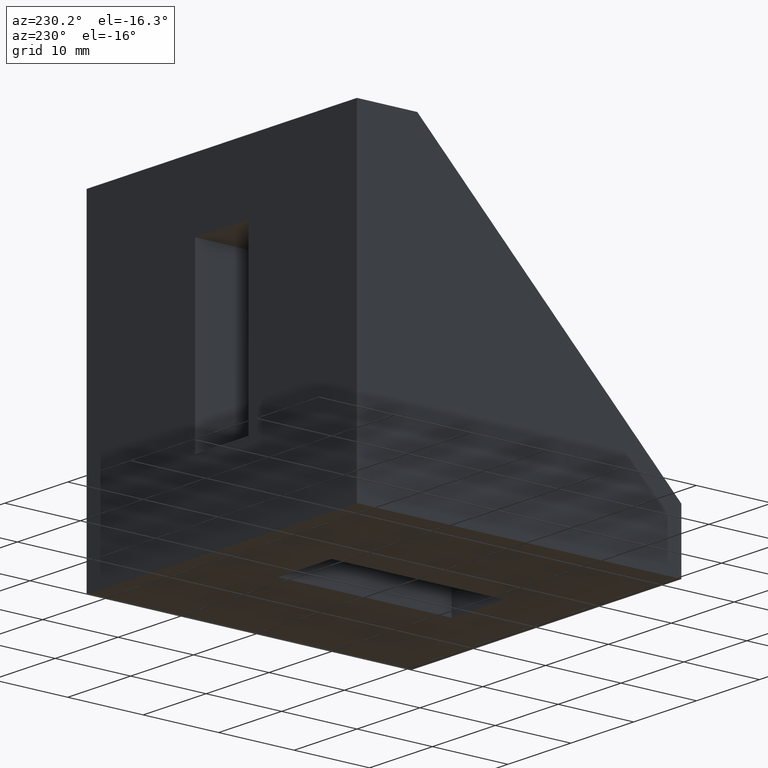
[diagram: clean part render]
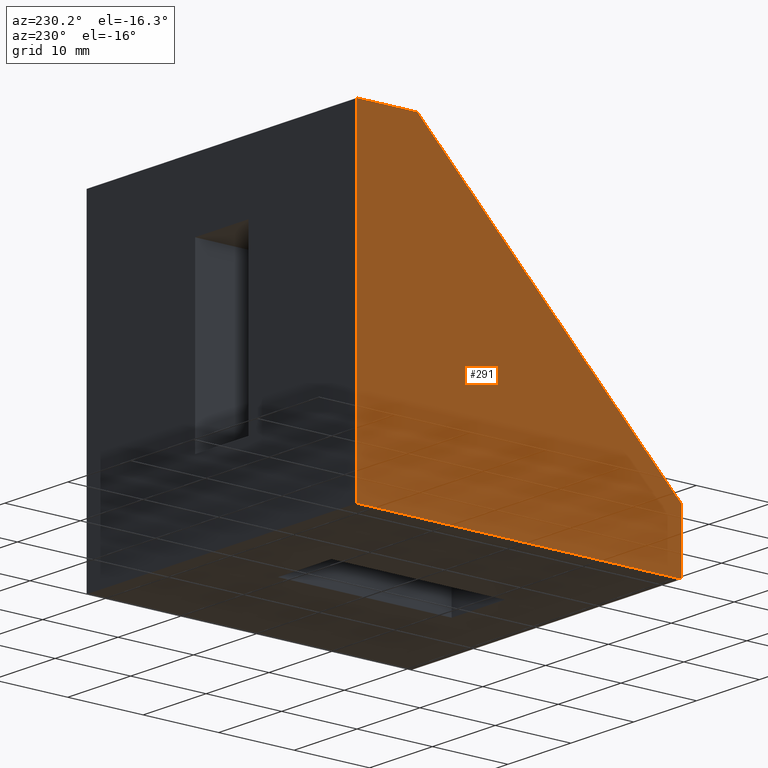
[diagram: same view with one face highlighted and labeled with its STEP entity id]
A machine part, auxiliary view. The second image highlights one B-rep face of the part: STEP entity #291.
In plain terms, the highlighted planar face has unit normal (-1, -0, 0).
Its self-contained STEP definition (entity closure, byte-faithful):
#7=CARTESIAN_POINT('',(2.864376E-014,5.421043E-014,-2.632989E-015));
#8=VERTEX_POINT('',#7);
#25=CARTESIAN_POINT('',(3.390974E-014,-42.999999999827992,4.476881E-015));
#26=VERTEX_POINT('',#25);
#33=CARTESIAN_POINT('',(2.864376E-014,5.684342E-014,-2.632989E-015));
#34=DIRECTION('',(0.0,-1.0,0.0));
#35=VECTOR('',#34,42.999999999828049);
#36=LINE('',#33,#35);
#37=EDGE_CURVE('',#8,#26,#36,.T.);
#106=CARTESIAN_POINT('',(0.000000206476568,-42.999999999827985,7.999999445062490));
#107=VERTEX_POINT('',#106);
#114=CARTESIAN_POINT('',(3.390974E-014,-42.999999999827992,4.440892E-015));
#115=DIRECTION('',(0.000000025809569,0.0,1.000000000000000));
#116=VECTOR('',#115,7.999999445062485);
#117=LINE('',#114,#116);
#118=EDGE_CURVE('',#26,#107,#117,.T.);
#137=CARTESIAN_POINT('',(0.000001109811495,-7.999999999968057,42.999999444922345));
#138=VERTEX_POINT('',#137);
#145=CARTESIAN_POINT('',(0.000000206476568,-42.999999999827985,7.999999445062493));
#146=DIRECTION('',(0.000000018250122,0.707106781186548,0.707106781186547));
#147=VECTOR('',#146,49.497474682860194);
#148=LINE('',#145,#147);
#149=EDGE_CURVE('',#107,#138,#148,.T.);
#206=CARTESIAN_POINT('',(0.000001109811502,6.039613E-014,42.999999444922338));
#207=VERTEX_POINT('',#206);
#214=CARTESIAN_POINT('',(0.000001109811495,-7.999999999968057,42.999999444922345));
#215=DIRECTION('',(0.0,1.0,0.0));
#216=VECTOR('',#215,7.999999999968117);
#217=LINE('',#214,#216);
#218=EDGE_CURVE('',#138,#207,#217,.T.);
#228=CARTESIAN_POINT('',(0.000001109811502,6.039613E-014,42.999999444922338));
#229=DIRECTION('',(-0.000000025809569,-1.224647E-016,-1.000000000000000));
#230=VECTOR('',#229,42.999999444922352);
#231=LINE('',#228,#230);
#232=EDGE_CURVE('',#207,#8,#231,.T.);
#279=CARTESIAN_POINT('',(0.000001220792770,4.300004724509624,47.300004113941348));
#280=DIRECTION('',(-1.000000000000000,-1.224647E-016,0.000000025809569));
#281=DIRECTION('',(-0.000000025809569,-3.160761E-024,-1.000000000000000));
#282=AXIS2_PLACEMENT_3D('',#279,#280,#281);
#283=PLANE('',#282);
#284=ORIENTED_EDGE('',*,*,#37,.T.);
#285=ORIENTED_EDGE('',*,*,#118,.T.);
#286=ORIENTED_EDGE('',*,*,#149,.T.);
#287=ORIENTED_EDGE('',*,*,#218,.T.);
#288=ORIENTED_EDGE('',*,*,#232,.T.);
#289=EDGE_LOOP('',(#284,#285,#286,#287,#288));
#290=FACE_OUTER_BOUND('',#289,.T.);
#291=ADVANCED_FACE('',(#290),#283,.T.);